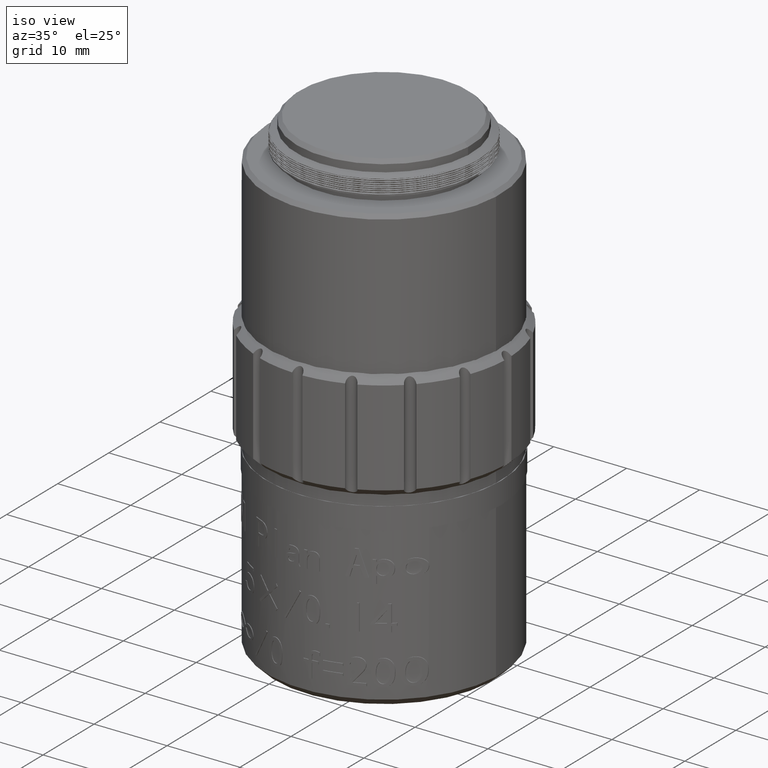
[diagram: clean part render]
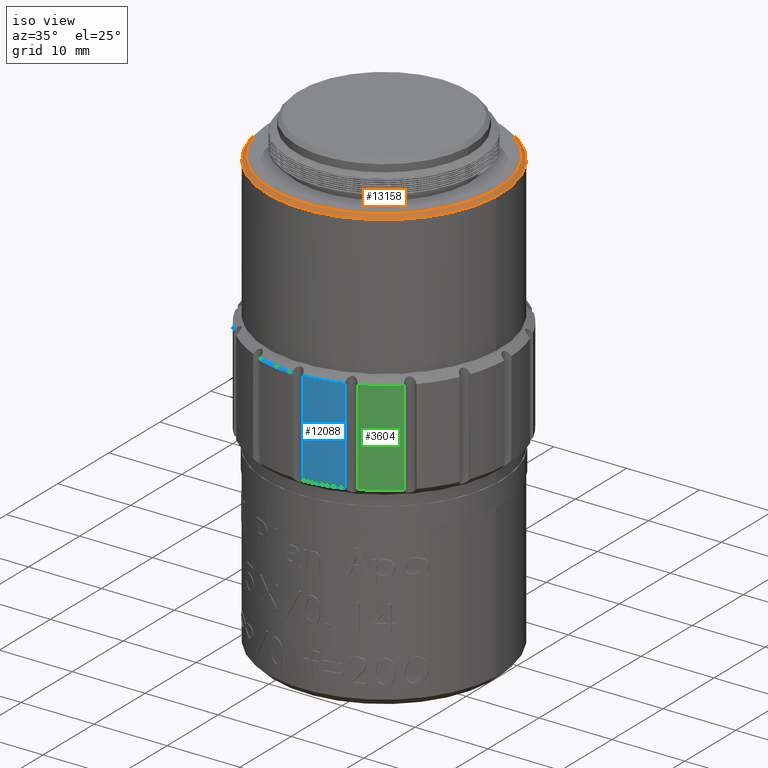
[diagram: same view with three faces highlighted in distinct colors, each labeled with its STEP entity id]
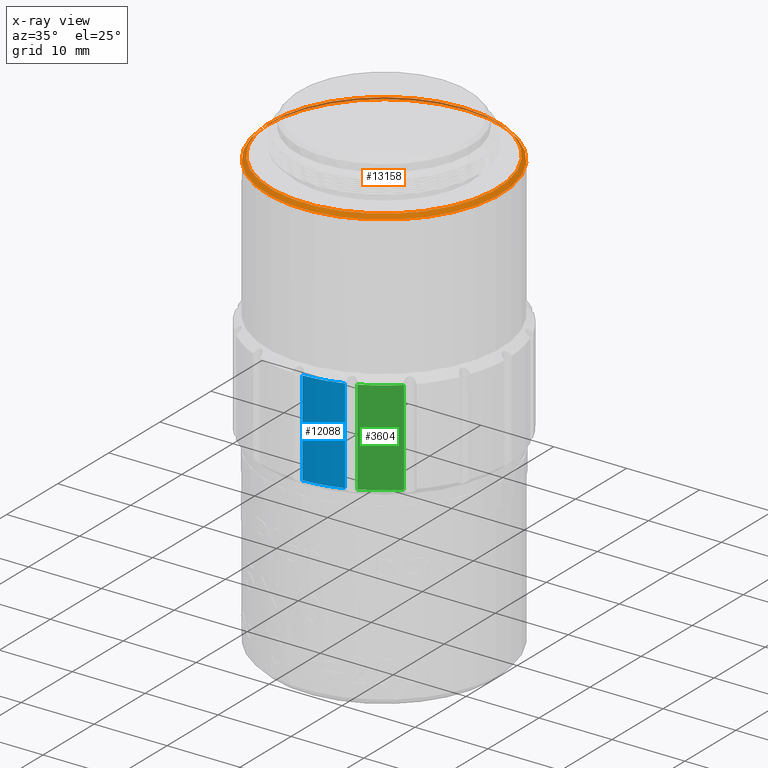
[diagram: x-ray of the same camera — body ghosted, the three highlighted faces saturated]
A machine part, iso view with three faces highlighted in distinct colors.
The next image is the same camera in x-ray (body ghosted, the three faces saturated) — at least one of them is partly hidden behind the body in this view.
Their STEP definitions:

[orange] entity #13158 — the highlighted conical surface has half-angle 45 deg.
#1557 = DIRECTION ( 'NONE',  ( 0.000000000000000000, 0.000000000000000000, 1.000000000000000000 ) ) ;
#2043 = EDGE_CURVE ( 'NONE', #6275, #6275, #8162, .T. ) ;
#2258 = FACE_OUTER_BOUND ( 'NONE', #15546, .T. ) ;
#2378 = VERTEX_POINT ( 'NONE', #16906 ) ;
#2384 = CARTESIAN_POINT ( 'NONE',  ( -122.6630341068842824, 22.01530283243863906, 26.59225607790693857 ) ) ;
#2798 = AXIS2_PLACEMENT_3D ( 'NONE', #6685, #1557, #13372 ) ;
#3258 = CONICAL_SURFACE ( 'NONE', #10869, 16.00000000000000711, 0.7853981633974482790 ) ;
#3495 = DIRECTION ( 'NONE',  ( -0.9984986589527604650, 0.05477616333350737027, 0.000000000000000000 ) ) ;
#6064 = DIRECTION ( 'NONE',  ( -0.000000000000000000, 0.000000000000000000, -1.000000000000000000 ) ) ;
#6275 = VERTEX_POINT ( 'NONE', #7855 ) ;
#6325 = FACE_BOUND ( 'NONE', #14959, .T. ) ;
#6685 = CARTESIAN_POINT ( 'NONE',  ( -122.6630341068842824, 22.01530283243863906, 27.09225607790693857 ) ) ;
#7659 = ORIENTED_EDGE ( 'NONE', *, *, #2043, .F. ) ;
#7855 = CARTESIAN_POINT ( 'NONE',  ( -107.1863048931164997, 21.16627230076927901, 27.09225607790693857 ) ) ;
#8162 = CIRCLE ( 'NONE', #2798, 15.50000000000000355 ) ;
#8259 = EDGE_CURVE ( 'NONE', #2378, #2378, #10335, .T. ) ;
#8707 = CARTESIAN_POINT ( 'NONE',  ( -122.6630341068842824, 22.01530283243863906, 26.59225607790693857 ) ) ;
#10335 = CIRCLE ( 'NONE', #12581, 16.00000000000000711 ) ;
#10869 = AXIS2_PLACEMENT_3D ( 'NONE', #8707, #6064, #3495 ) ;
#11991 = DIRECTION ( 'NONE',  ( -0.000000000000000000, -0.000000000000000000, -1.000000000000000000 ) ) ;
#12581 = AXIS2_PLACEMENT_3D ( 'NONE', #2384, #11991, #14538 ) ;
#13158 = ADVANCED_FACE ( 'NONE', ( #2258, #6325 ), #3258, .T. ) ;
#13372 = DIRECTION ( 'NONE',  ( 0.9984986589527603540, -0.05477616333350721067, 0.000000000000000000 ) ) ;
#14538 = DIRECTION ( 'NONE',  ( 0.9984986589527604650, -0.05477616333350737027, 0.000000000000000000 ) ) ;
#14959 = EDGE_LOOP ( 'NONE', ( #7659 ) ) ;
#15546 = EDGE_LOOP ( 'NONE', ( #16689 ) ) ;
#16689 = ORIENTED_EDGE ( 'NONE', *, *, #8259, .F. ) ;
#16906 = CARTESIAN_POINT ( 'NONE',  ( -106.6870555636401150, 21.13888421910252191, 26.59225607790693857 ) ) ;

[blue] entity #12088 — the highlighted cylindrical surface (partial cylindrical patch) has radius 17 mm, axis along (-0, -0, -1).
#592 = DIRECTION ( 'NONE',  ( 0.000000000000000000, 0.000000000000000000, -1.000000000000000000 ) ) ;
#1504 = CARTESIAN_POINT ( 'NONE',  ( -122.6630341068842540, 22.01530283243863195, 6.500000000000000000 ) ) ;
#1575 = AXIS2_PLACEMENT_3D ( 'NONE', #1504, #4160, #12259 ) ;
#2017 = FACE_OUTER_BOUND ( 'NONE', #6834, .T. ) ;
#3337 = EDGE_CURVE ( 'NONE', #10877, #17058, #14835, .T. ) ;
#3692 = DIRECTION ( 'NONE',  ( -0.000000000000000000, -0.000000000000000000, -1.000000000000000000 ) ) ;
#4160 = DIRECTION ( 'NONE',  ( -0.000000000000000000, -0.000000000000000000, -1.000000000000000000 ) ) ;
#5019 = CARTESIAN_POINT ( 'NONE',  ( -122.6630341068842540, 22.01530283243863195, -8.750073880203553145 ) ) ;
#5162 = ORIENTED_EDGE ( 'NONE', *, *, #6205, .T. ) ;
#5227 = DIRECTION ( 'NONE',  ( 1.000000000000000000, 0.000000000000000000, 0.000000000000000000 ) ) ;
#5457 = CARTESIAN_POINT ( 'NONE',  ( -116.8171272836566459, 6.052052116680864735, -6.500000000000000000 ) ) ;
#5620 = DIRECTION ( 'NONE',  ( -0.000000000000000000, -0.000000000000000000, 1.000000000000000000 ) ) ;
#5793 = EDGE_CURVE ( 'NONE', #10889, #10877, #6198, .T. ) ;
#6198 = CIRCLE ( 'NONE', #10985, 17.00000000000000000 ) ;
#6205 = EDGE_CURVE ( 'NONE', #13639, #10889, #7311, .T. ) ;
#6209 = VECTOR ( 'NONE', #5620, 1000.000000000000000 ) ;
#6378 = CARTESIAN_POINT ( 'NONE',  ( -116.8171272836566459, 6.052052116680864735, 6.500000000000000000 ) ) ;
#6834 = EDGE_LOOP ( 'NONE', ( #15475, #5162, #11712, #15495 ) ) ;
#7311 = LINE ( 'NONE', #16877, #10697 ) ;
#7410 = CYLINDRICAL_SURFACE ( 'NONE', #13965, 16.99999999999998579 ) ;
#9179 = CIRCLE ( 'NONE', #1575, 16.99999999999998579 ) ;
#9365 = DIRECTION ( 'NONE',  ( 0.000000000000000000, 0.000000000000000000, 1.000000000000000000 ) ) ;
#10218 = DIRECTION ( 'NONE',  ( -1.000000000000000000, 0.000000000000000000, 0.000000000000000000 ) ) ;
#10697 = VECTOR ( 'NONE', #592, 1000.000000000000000 ) ;
#10877 = VERTEX_POINT ( 'NONE', #5457 ) ;
#10889 = VERTEX_POINT ( 'NONE', #10915 ) ;
#10915 = CARTESIAN_POINT ( 'NONE',  ( -121.9550761942217747, 5.030050535404635426, -6.499999999999999112 ) ) ;
#10985 = AXIS2_PLACEMENT_3D ( 'NONE', #13321, #9365, #5227 ) ;
#11712 = ORIENTED_EDGE ( 'NONE', *, *, #5793, .T. ) ;
#12088 = ADVANCED_FACE ( 'NONE', ( #2017 ), #7410, .T. ) ;
#12259 = DIRECTION ( 'NONE',  ( -1.000000000000000000, 0.000000000000000000, 0.000000000000000000 ) ) ;
#12980 = EDGE_CURVE ( 'NONE', #17058, #13639, #9179, .T. ) ;
#13321 = CARTESIAN_POINT ( 'NONE',  ( -122.6630341068842540, 22.01530283243863195, -6.499999999999999112 ) ) ;
#13584 = CARTESIAN_POINT ( 'NONE',  ( -121.9550761942217747, 5.030050535404635426, 6.500000000000000000 ) ) ;
#13639 = VERTEX_POINT ( 'NONE', #13584 ) ;
#13965 = AXIS2_PLACEMENT_3D ( 'NONE', #5019, #3692, #10218 ) ;
#14835 = LINE ( 'NONE', #16061, #6209 ) ;
#15475 = ORIENTED_EDGE ( 'NONE', *, *, #12980, .T. ) ;
#15495 = ORIENTED_EDGE ( 'NONE', *, *, #3337, .T. ) ;
#16061 = CARTESIAN_POINT ( 'NONE',  ( -116.8171272836566317, 6.052052116680864735, -5.050000000000006928 ) ) ;
#16877 = CARTESIAN_POINT ( 'NONE',  ( -121.9550761942217747, 5.030050535404635426, -5.050000000000006928 ) ) ;
#17058 = VERTEX_POINT ( 'NONE', #6378 ) ;

[green] entity #3604 — the highlighted cylindrical surface (partial cylindrical patch) has radius 17 mm, axis along (-0, -0, -1).
#691 = CARTESIAN_POINT ( 'NONE',  ( -111.1532488683255053, 9.504313912203135928, -5.050000000000006928 ) ) ;
#1085 = CYLINDRICAL_SURFACE ( 'NONE', #11003, 16.99999999999998579 ) ;
#1442 = ORIENTED_EDGE ( 'NONE', *, *, #4763, .T. ) ;
#1913 = AXIS2_PLACEMENT_3D ( 'NONE', #16828, #8835, #10246 ) ;
#1964 = AXIS2_PLACEMENT_3D ( 'NONE', #5642, #2973, #14767 ) ;
#2206 = CIRCLE ( 'NONE', #1913, 16.99999999999998579 ) ;
#2973 = DIRECTION ( 'NONE',  ( 0.000000000000000000, 0.000000000000000000, 1.000000000000000000 ) ) ;
#3066 = EDGE_CURVE ( 'NONE', #14611, #6671, #3109, .T. ) ;
#3109 = CIRCLE ( 'NONE', #1964, 17.00000000000000000 ) ;
#3604 = ADVANCED_FACE ( 'NONE', ( #17099 ), #1085, .T. ) ;
#4087 = EDGE_LOOP ( 'NONE', ( #14183, #1442, #6562, #12694 ) ) ;
#4611 = LINE ( 'NONE', #11561, #16038 ) ;
#4763 = EDGE_CURVE ( 'NONE', #13493, #14611, #4611, .T. ) ;
#5642 = CARTESIAN_POINT ( 'NONE',  ( -122.6630341068842540, 22.01530283243863195, -6.499999999999999112 ) ) ;
#6018 = DIRECTION ( 'NONE',  ( 0.000000000000000000, 0.000000000000000000, -1.000000000000000000 ) ) ;
#6562 = ORIENTED_EDGE ( 'NONE', *, *, #3066, .T. ) ;
#6671 = VERTEX_POINT ( 'NONE', #13263 ) ;
#8480 = VERTEX_POINT ( 'NONE', #15717 ) ;
#8835 = DIRECTION ( 'NONE',  ( -0.000000000000000000, -0.000000000000000000, -1.000000000000000000 ) ) ;
#8934 = CARTESIAN_POINT ( 'NONE',  ( -122.6630341068842540, 22.01530283243863195, -8.750073880203553145 ) ) ;
#9562 = CARTESIAN_POINT ( 'NONE',  ( -115.5089916328799546, 6.593899644656321613, 6.500000000000000000 ) ) ;
#10135 = DIRECTION ( 'NONE',  ( -0.000000000000000000, -0.000000000000000000, 1.000000000000000000 ) ) ;
#10246 = DIRECTION ( 'NONE',  ( -1.000000000000000000, 0.000000000000000000, 0.000000000000000000 ) ) ;
#11003 = AXIS2_PLACEMENT_3D ( 'NONE', #8934, #12897, #13156 ) ;
#11561 = CARTESIAN_POINT ( 'NONE',  ( -115.5089916328799688, 6.593899644656312731, -5.050000000000006928 ) ) ;
#12095 = EDGE_CURVE ( 'NONE', #6671, #8480, #12947, .T. ) ;
#12694 = ORIENTED_EDGE ( 'NONE', *, *, #12095, .T. ) ;
#12897 = DIRECTION ( 'NONE',  ( -0.000000000000000000, -0.000000000000000000, -1.000000000000000000 ) ) ;
#12947 = LINE ( 'NONE', #691, #15634 ) ;
#13156 = DIRECTION ( 'NONE',  ( -1.000000000000000000, 0.000000000000000000, 0.000000000000000000 ) ) ;
#13263 = CARTESIAN_POINT ( 'NONE',  ( -111.1532488683255195, 9.504313912203135928, -6.499999999999999112 ) ) ;
#13493 = VERTEX_POINT ( 'NONE', #9562 ) ;
#14183 = ORIENTED_EDGE ( 'NONE', *, *, #15408, .T. ) ;
#14611 = VERTEX_POINT ( 'NONE', #16521 ) ;
#14767 = DIRECTION ( 'NONE',  ( 1.000000000000000000, 0.000000000000000000, 0.000000000000000000 ) ) ;
#15408 = EDGE_CURVE ( 'NONE', #8480, #13493, #2206, .T. ) ;
#15634 = VECTOR ( 'NONE', #10135, 1000.000000000000000 ) ;
#15717 = CARTESIAN_POINT ( 'NONE',  ( -111.1532488683255195, 9.504313912203135928, 6.500000000000000000 ) ) ;
#16038 = VECTOR ( 'NONE', #6018, 1000.000000000000000 ) ;
#16521 = CARTESIAN_POINT ( 'NONE',  ( -115.5089916328799546, 6.593899644656321613, -6.499999999999999112 ) ) ;
#16828 = CARTESIAN_POINT ( 'NONE',  ( -122.6630341068842540, 22.01530283243863195, 6.500000000000000000 ) ) ;
#17099 = FACE_OUTER_BOUND ( 'NONE', #4087, .T. ) ;